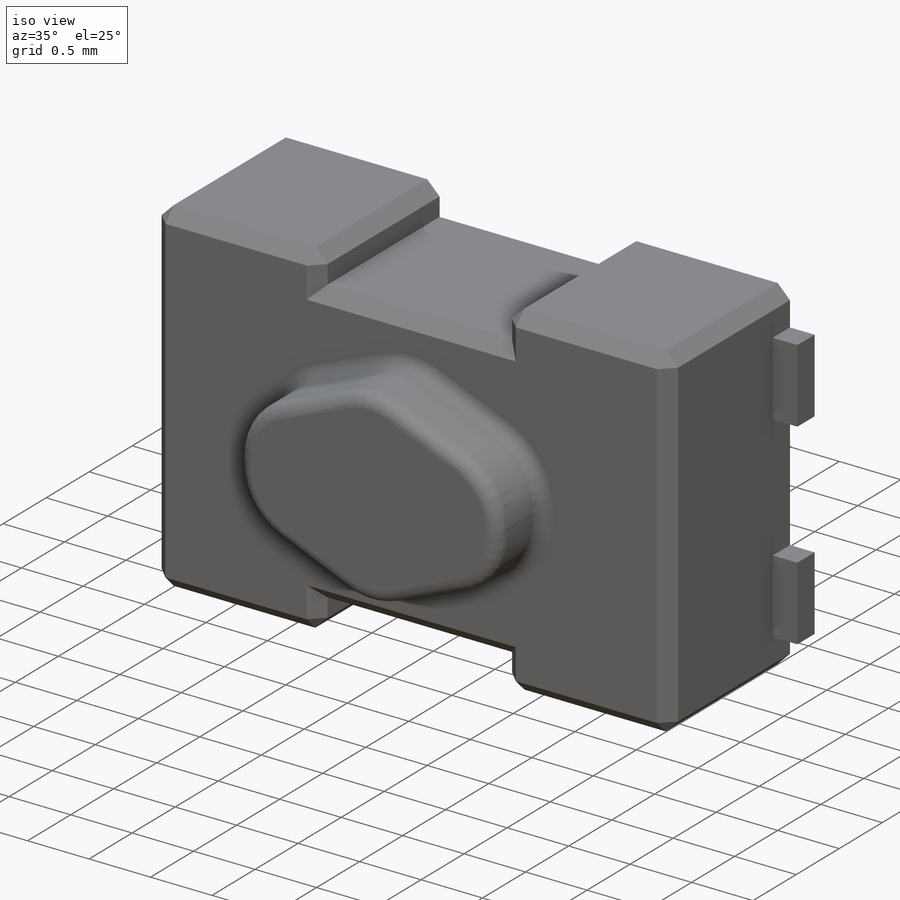
[diagram: iso view]
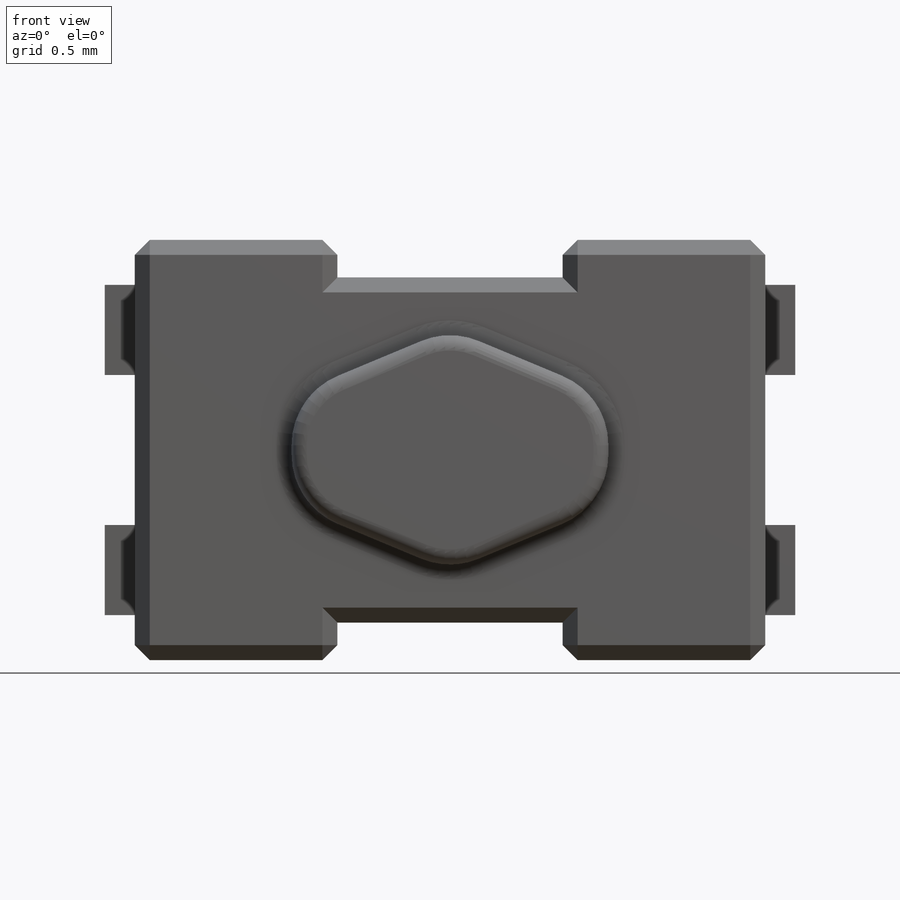
[diagram: front view]
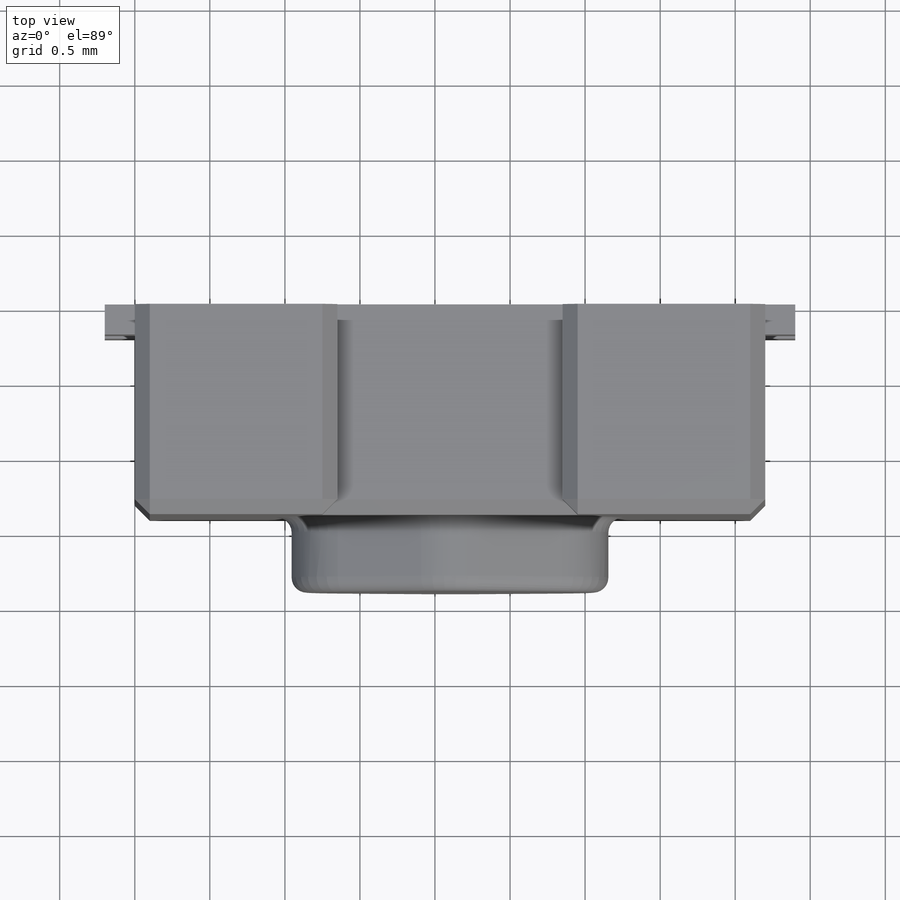
[diagram: top view]
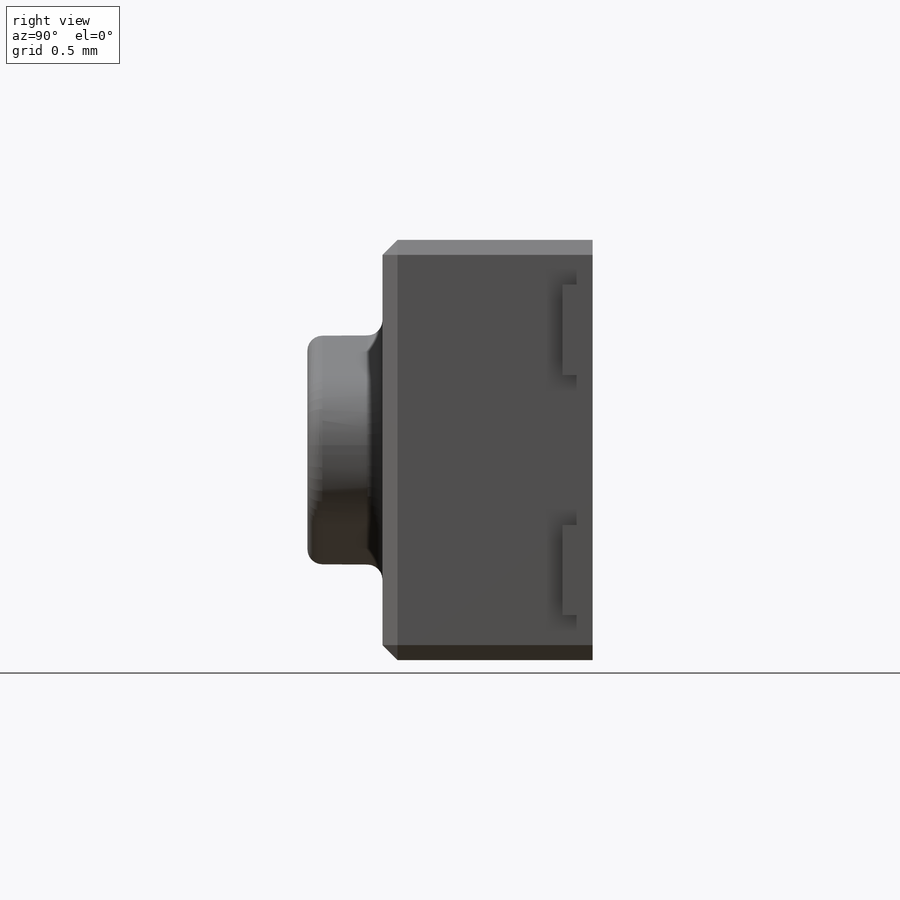
[diagram: right view]
SOLIDWORKS PART (.sldprt)
format: sldprt  version: not decoded by parser v0  size: 313,344 bytes
history: native  units: mm
features: sketch x4, extrude x3, fillet x2, material x1, cut_extrude x1, chamfer x1 (+13 scaffold rows collapsed)
feature tree (25):
  scaffold x13  (default folders/planes/origin — collapsed)
  material  "Material <not specified>"
  sketch  "Sketch1"  dims[D1=2.8mm D2=4.2mm]
  extrude  "Boss-Extrude1"  Depth=1.4mm
  sketch  "Sketch2"  dims[D1=4.6mm D2=0.6mm D3=1.0mm]
  extrude  "Boss-Extrude2"  Depth=0.2mm
  sketch  "Sketch3"  dims[D1=1.5mm D2=0.25mm]
  cut_extrude  "Cut-Extrude1"  [1 undecoded]
  sketch  "Sketch4"  dims[D1=1.61mm D2=2.11mm D3=~0.730515mm]
  extrude  "Boss-Extrude3"  Depth=0.5mm
  fillet  "Fillet1"  Radius=0.5mm
  fillet  "Fillet2"  Radius=0.1mm
  chamfer  "Chamfer1"  Distance=0.1mm Angle=45deg
decode coverage: 10 of 11 modeling features carry decoded parameters
note: ~ marks probable driven/reference dimensions
note: 1 parameter value undecoded
note: suppression state not decoded; provenance and decode notes live in map.json
